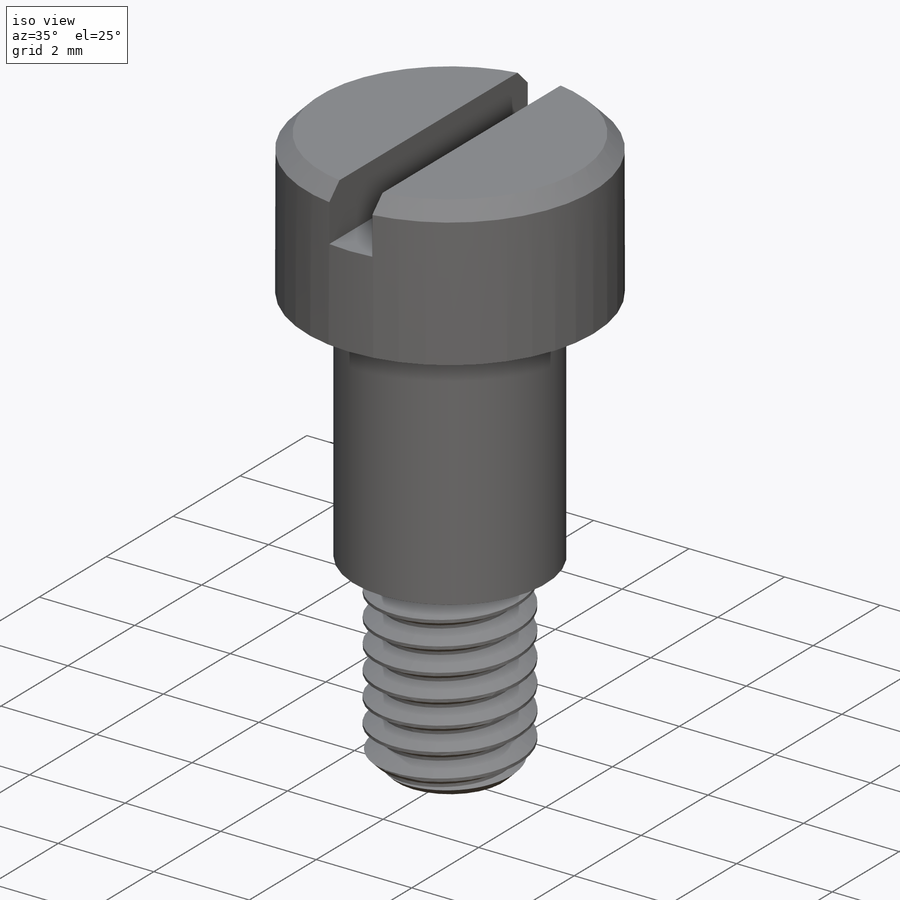
[diagram: iso view]
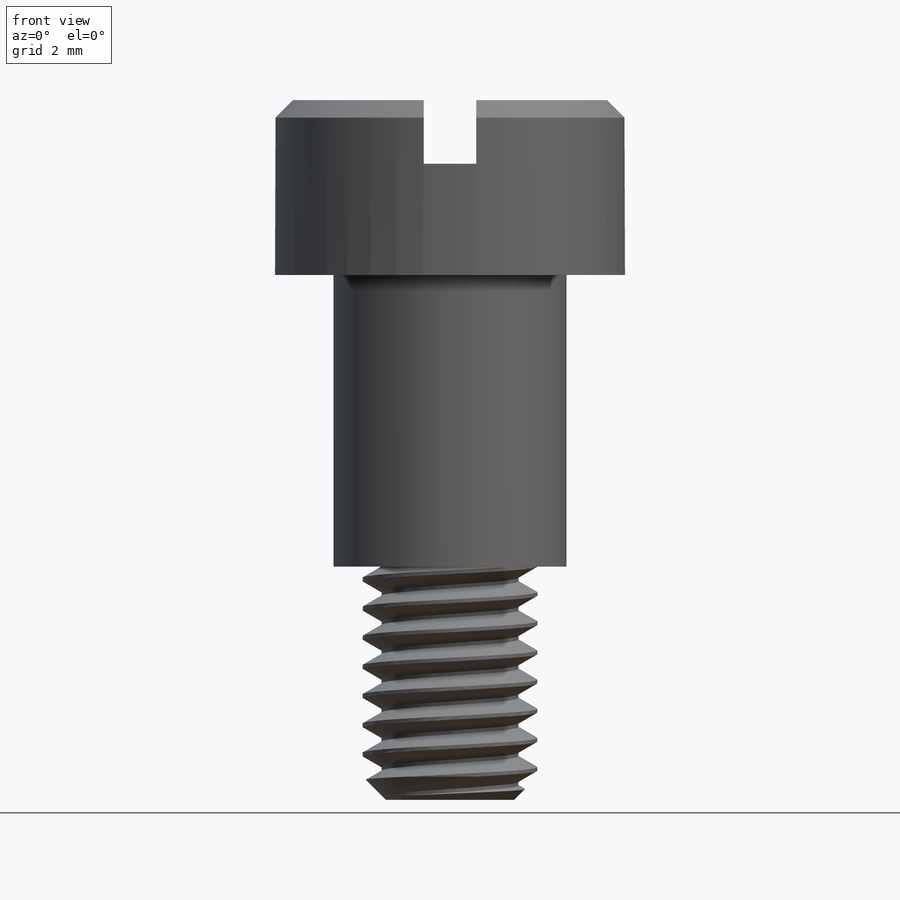
[diagram: front view]
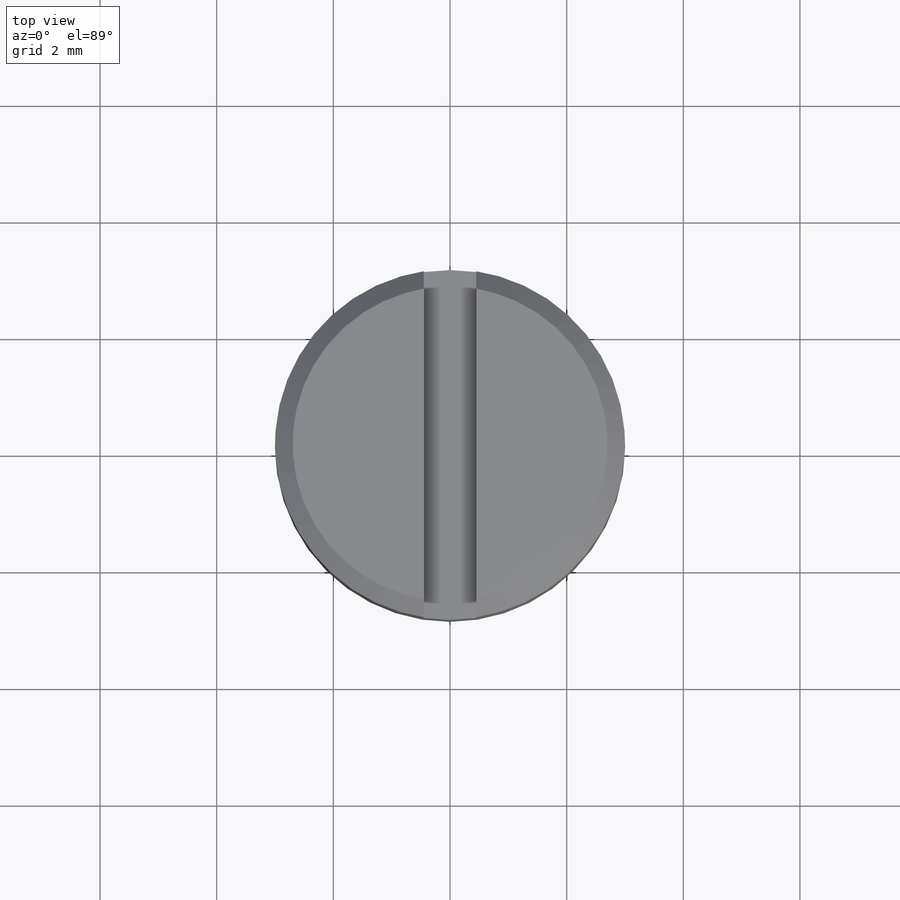
[diagram: top view]
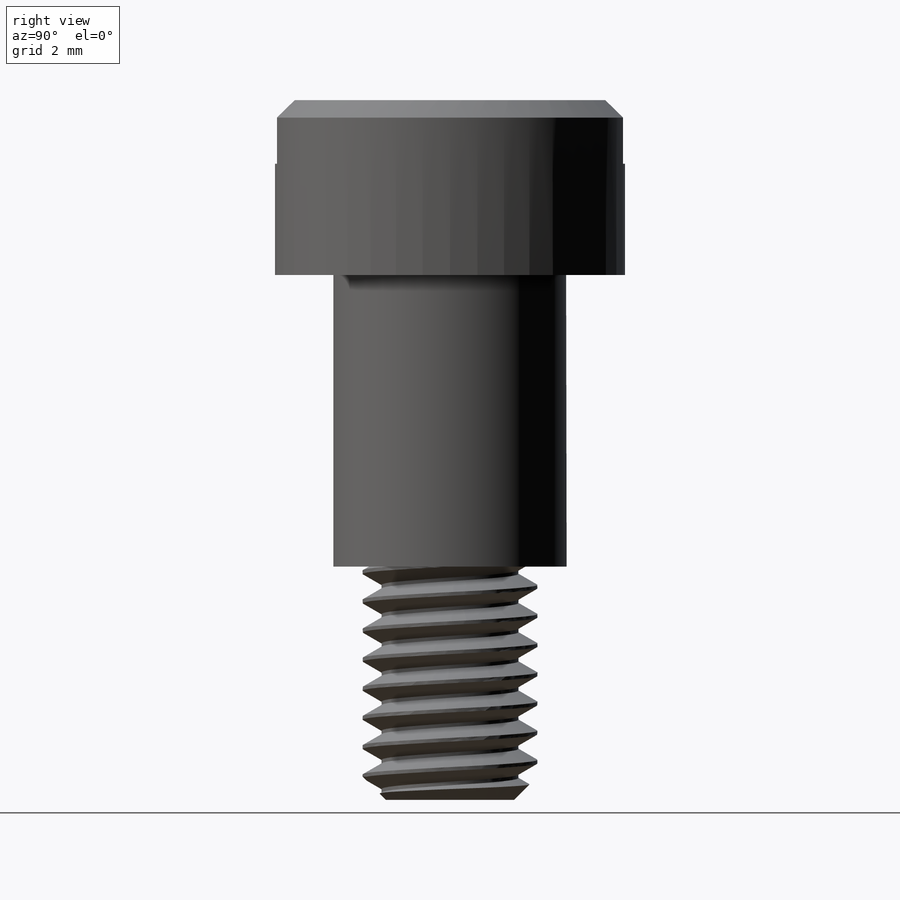
[diagram: right view]
SOLIDWORKS PART (.sldprt)
format: sldprt  version: not decoded by parser v0  size: 515,584 bytes
history: native  units: mm
features: sketch x10, extrude x3, chamfer x2, material x1, cut_extrude x1, helix x1, sweep x1 (+11 scaffold rows collapsed)
feature tree (30):
  scaffold x11  (default folders/planes/origin — collapsed)
  material  "AISI 304"
  sketch  "Sketch1"  dims[Head Dia=6.0mm]
  extrude  "Extrude1"  Depth=3mm Head Ht=3mm
  chamfer  "Chamfer2"  Distance=0.3mm Angle=45deg
  sketch  "Sketch2"  dims[Hex Key=6.0mm D1=0.9mm]
  cut_extrude  "Cut-Extrude1"  Depth=1.090909mm
  sketch  "Sketch4"  dims[Shoulder Dia=4.0mm]
  extrude  "Extrude2"  Depth=5mm Shoulder Length=5mm
  sketch  "Sketch5"  dims[Thread Dia=3.0mm]
  extrude  "Extrude3"  Depth=4mm Thread Length=4mm
  chamfer  "Chamfer1"  Distance=0.4mm Angle=45deg
  sketch  "Sketch12"
  helix  "Helix/Spiral1"  Pitch=6mm Thread Pitch =0.5mm
  sketch  "Sketch13"  dims[c1.D1=~1.910764mm c2.D1=60.0deg c2.D2=0.0625mm c2.D3=0.25mm]
  sweep  "Cut-Sweep1"
  sketch  "Sketch10"  dims[c1.D4=~0.027429mm c1.D1=~11.293235mm c2.D1=20.0deg c3.D1=~0.981895mm c4.D1=90.0deg c4.D2=~11.925286mm c5.D2=5.0deg c5.D3=~0.043923mm]
  sketch  "Sketch11"
  sketch  "Sketch14"
  sketch  "Sketch15"
decode coverage: 13 of 18 modeling features carry decoded parameters
note: ~ marks probable driven/reference dimensions
note: suppression state not decoded; provenance and decode notes live in map.json
